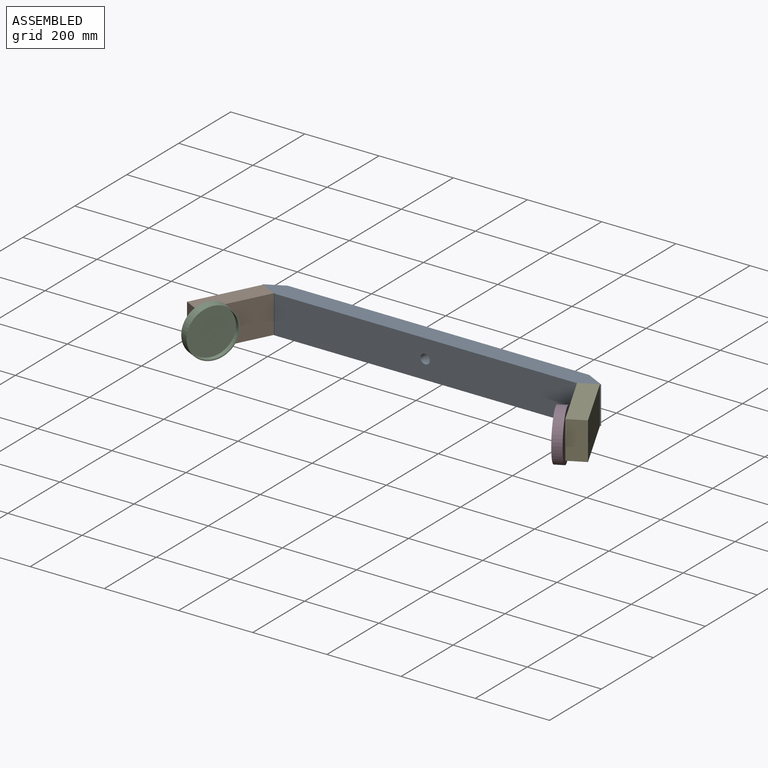
[diagram: assembled view]
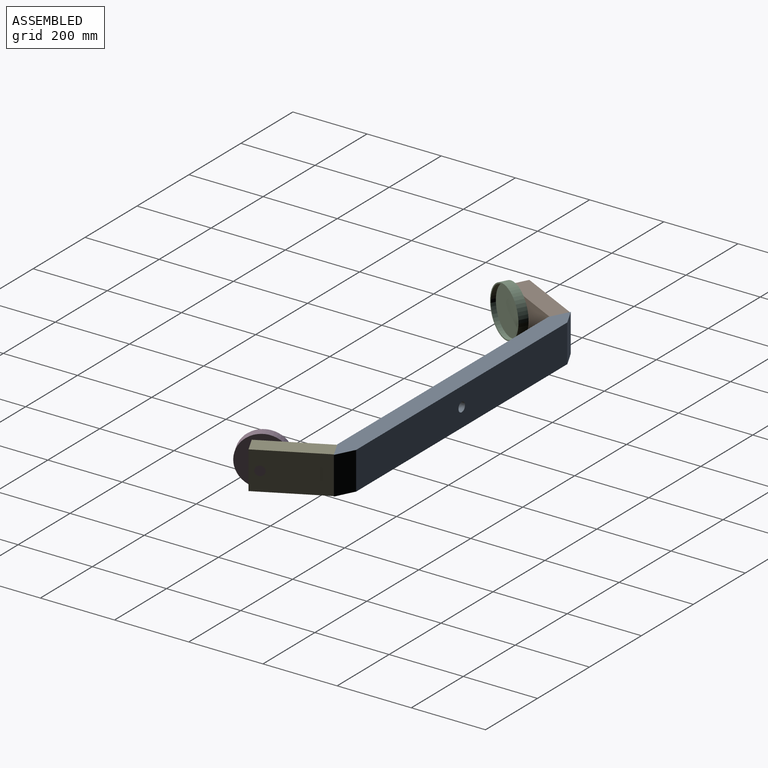
[diagram: assembled view, second angle]
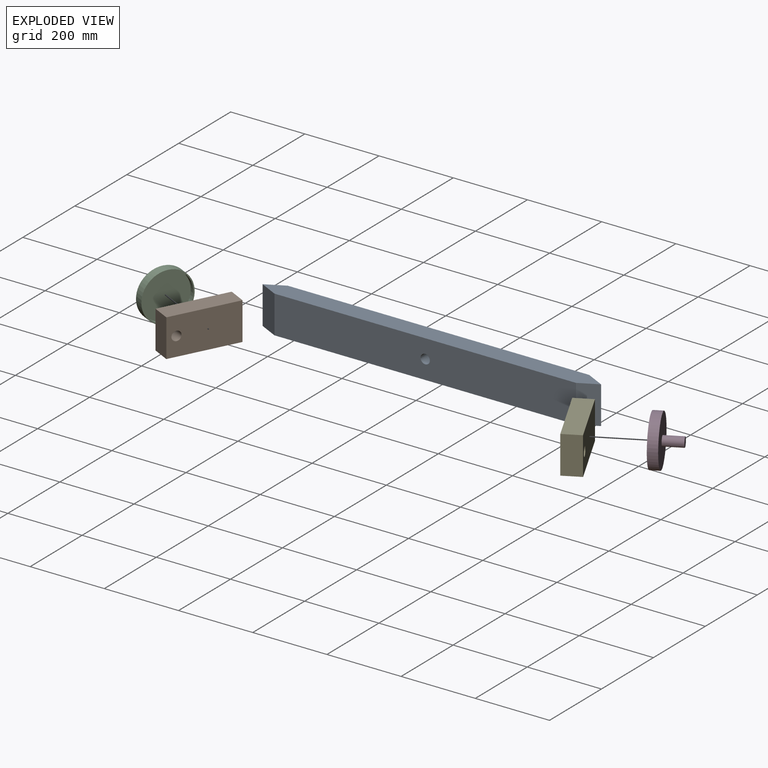
[diagram: exploded view]
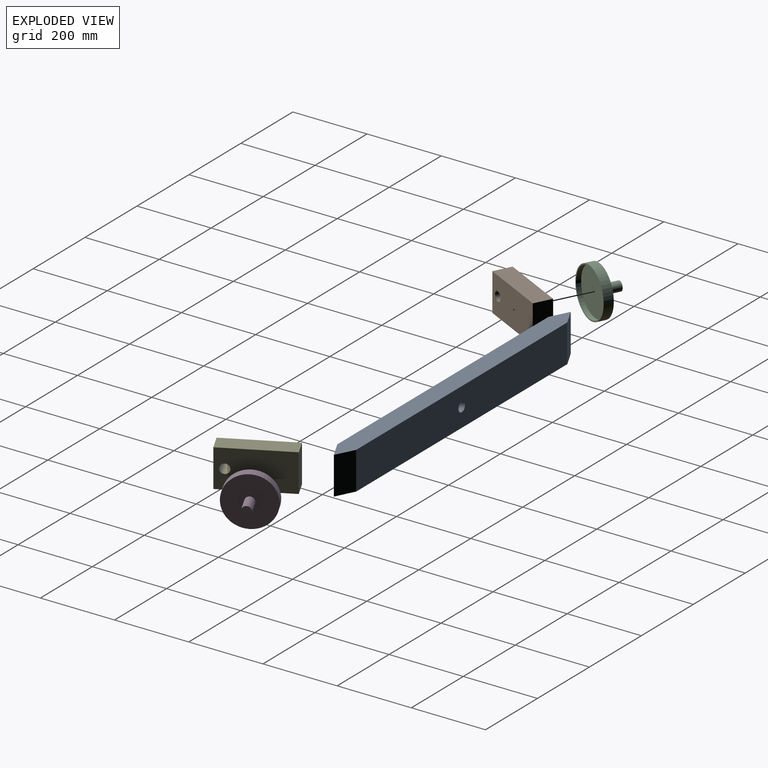
[diagram: exploded view, second angle]
ASSEMBLY  parts=5 mates=4
PART A: 21 faces, bbox 912.3x50.8x101.6 mm
  f0: plane 912.35x50.8mm, normal (0,0,1), area 43818.7mm2, adj f3,f4,f5,f6,f7,f8
  f1: plane 912.35x50.8mm, normal (0,0,-1), area 43520.9mm2, adj f3,f4,f5,f6,f7,f8,f9,f11
  f2: cylinder r=12.7mm len=50.8mm, axis (0,1,0), area 4053.7mm2, adj f3,f4
  f3: plane 812.8x101.6mm, normal (0,-1,0), area 82073.8mm2, adj f0,f1,f2,f5,f8
  f4: plane 812.8x101.6mm, normal (0,1,0), area 82073.8mm2, adj f0,f1,f2,f6,f7
  f5: plane 101.6x49.77mm, normal (0.45,-0.89,0), area 5677.4mm2, adj f0,f1,f3,f6
  f6: plane 101.6x49.77mm, normal (0.45,0.89,0), area 5677.4mm2, adj f0,f1,f4,f5
  f7: plane 101.6x49.77mm, normal (-0.45,0.89,0), area 5677.4mm2, adj f0,f1,f4,f8
  f8: plane 101.6x49.77mm, normal (-0.45,-0.89,0), area 5677.4mm2, adj f0,f1,f3,f7
  f9: cylinder r=3.98mm len=25.4mm, axis (0,0,-1), area 634.4mm2, adj f1,f10
  f10: plane 7.95x7.95mm, normal (0,0,-1), area 49.6mm2, adj f9
  f11: cylinder r=3.98mm len=25.4mm, axis (0,0,-1), area 634.4mm2, adj f1,f12
  f12: plane 7.95x7.95mm, normal (0,0,-1), area 49.6mm2, adj f11
  f13: cylinder r=3.98mm len=25.4mm, axis (0,0,-1), area 634.4mm2, adj f1,f14
  f14: plane 7.95x7.95mm, normal (0,0,-1), area 49.6mm2, adj f13
  f15: cylinder r=3.98mm len=25.4mm, axis (0,0,-1), area 634.4mm2, adj f1,f16
  f16: plane 7.95x7.95mm, normal (0,0,-1), area 49.6mm2, adj f15
  f17: cylinder r=3.98mm len=25.4mm, axis (0,0,-1), area 634.4mm2, adj f1,f18
  f18: plane 7.95x7.95mm, normal (0,0,-1), area 49.6mm2, adj f17
  f19: cylinder r=3.98mm len=25.4mm, axis (0,0,-1), area 634.4mm2, adj f1,f20
  f20: plane 7.95x7.95mm, normal (0,0,-1), area 49.6mm2, adj f19
PART B: 7 faces, bbox 190.5x50.8x101.6 mm
  f0: plane 101.6x50.8mm, normal (1,0,0), area 5161.3mm2, adj f1,f3,f5,f6
  f1: plane 190.5x50.8mm, normal (0,0,1), area 9677.4mm2, adj f0,f2,f5,f6
  f2: plane 101.6x50.8mm, normal (-1,0,0), area 5161.3mm2, adj f1,f3,f5,f6
  f3: plane 190.5x50.8mm, normal (0,0,-1), area 9677.4mm2, adj f0,f2,f5,f6
  f4: cylinder r=12.7mm len=50.8mm, axis (0,1,0), area 4053.7mm2, adj f5,f6
  f5: plane 190.5x101.6mm, normal (0,-1,0), area 18848.1mm2, adj f0,f1,f2,f3,f4
  f6: plane 190.5x101.6mm, normal (0,1,0), area 18848.1mm2, adj f0,f1,f2,f3,f4
PART C: 7 faces, bbox 133.4x76.2x133.4 mm
  f0: cylinder r=66.67mm len=133.35mm, axis (0,1,0), area 10640.9mm2, adj f1,f2
  f1: plane 133.35x133.35mm, normal (0,-1,0), area 1298.4mm2, adj f0,f3
  f2: plane 133.35x133.35mm, normal (0,1,0), area 13459.4mm2, adj f0,f5
  f3: cylinder r=63.5mm len=127mm, axis (0,-1,0), area 5067.1mm2, adj f1,f4
  f4: plane 127x127mm, normal (0,-1,0), area 12667.7mm2, adj f3
  f5: cylinder r=12.7mm len=50.8mm, axis (0,-1,0), area 4053.7mm2, adj f2,f6
  f6: plane 25.4x25.4mm, normal (0,1,0), area 506.7mm2, adj f5
PART D: same geometry as C
PART E: same geometry as B
PLACE A t=(-404.45,267.23,127.88)mm
PLACE B rot(axis=(0.52,-0.85,0),180deg) t=(-879.03,169.68,127.88)mm
PLACE C rot(axis=(0.52,-0.85,0),180deg) t=(-888.15,95.92,127.88)mm
PLACE D rot(axis=(0,0,-1),63deg) t=(79.26,95.92,127.88)mm
PLACE E rot(axis=(0,0,-1),63deg) t=(70.14,169.68,127.88)mm
MATE fastened C.f5 <-> B.f4  axis (-0.89,0.45,0) through (-933.4,119.01,127.88)mm
MATE fastened B.f2 <-> A.f8  axis (0.45,0.89,0) through (-835.73,254.53,127.88)mm
MATE fastened D.f5 <-> E.f4  axis (0.89,0.45,0) through (124.51,119.01,127.88)mm
MATE fastened E.f2 <-> A.f5  axis (-0.45,0.89,0) through (26.84,254.53,127.88)mm
